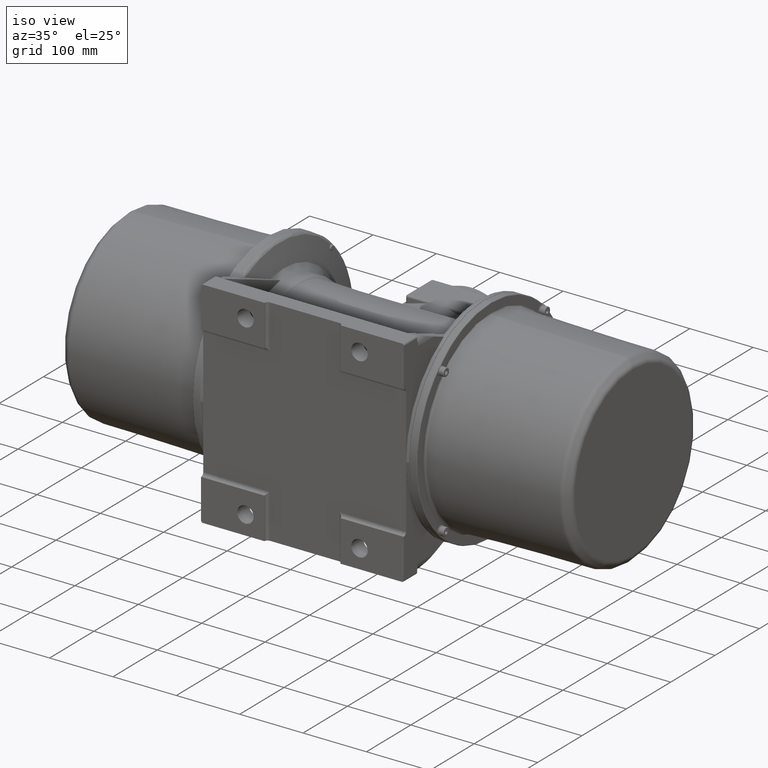
[diagram: clean part render]
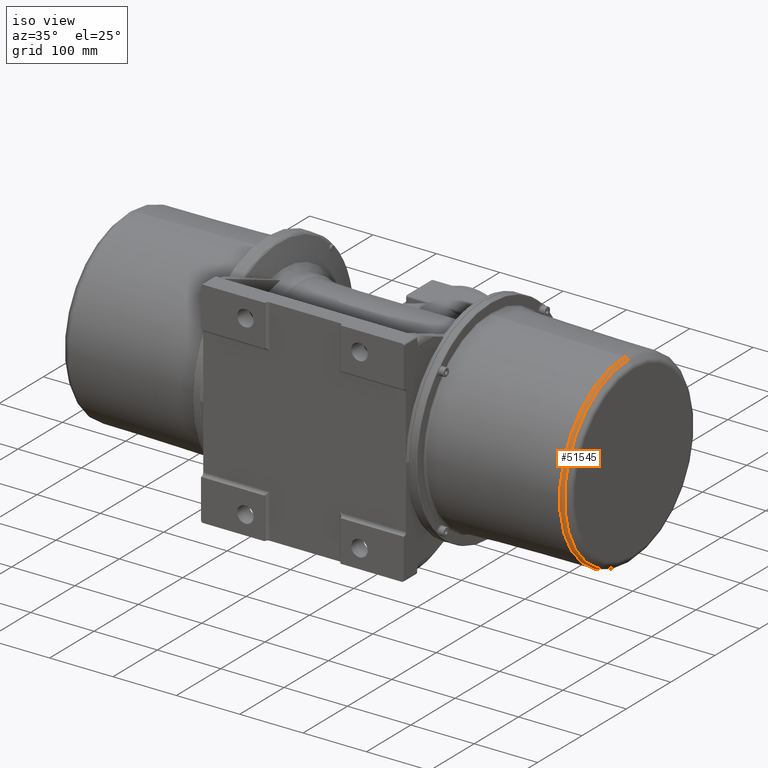
[diagram: same view with one face highlighted and labeled with its STEP entity id]
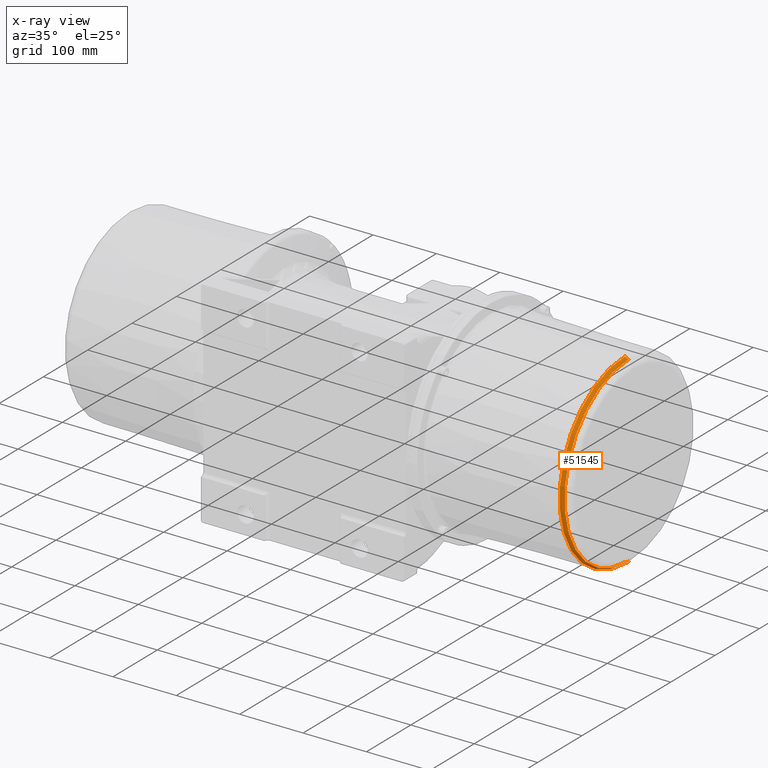
[diagram: x-ray of the same camera — body ghosted, the highlighted face saturated]
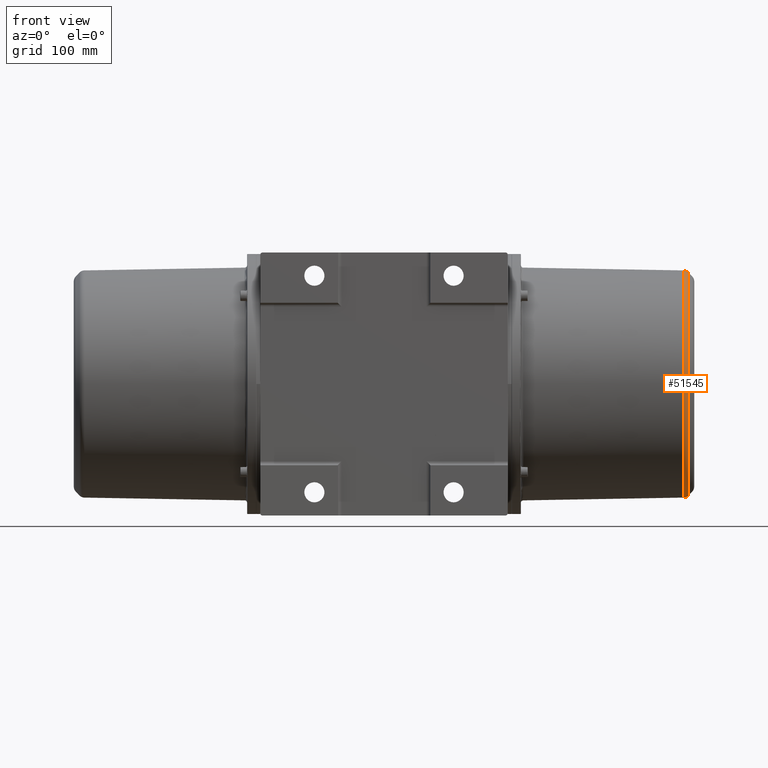
[diagram: same view with one face highlighted and labeled with its STEP entity id]
A machine part, iso view. The second image highlights one B-rep face of the part: STEP entity #51545.
The next image is the same camera in x-ray: the body ghosted, the highlighted face saturated — about 0% of this face is hidden behind the body in this view.
A second angle (front view) of the same face is appended — the face is thin or edge-on in the first view.
In plain terms, the highlighted toroidal blend (fillet) surface has major radius 138.327 mm and minor (blend) radius 8.5 mm.
Its self-contained STEP definition (entity closure, byte-faithful):
#7172 = CARTESIAN_POINT ( 'NONE',  ( 387.4794526992955100, 4.322844657877733000E-014, -146.8260628046224100 ) ) ;
#8132 = CARTESIAN_POINT ( 'NONE',  ( 393.4454955474579900, 4.268894653052243200E-014, -144.2319535446945100 ) ) ;
#8199 = CARTESIAN_POINT ( 'NONE',  ( 387.4794526992955100, 2.502562650619444800E-014, 146.8260628046224100 ) ) ;
#8214 = CARTESIAN_POINT ( 'NONE',  ( 393.4454955474579900, 2.502562650619444800E-014, 144.2319535446945100 ) ) ;
#15046 = AXIS2_PLACEMENT_3D ( 'NONE', #20312, #20310, #20321 ) ;
#15397 = AXIS2_PLACEMENT_3D ( 'NONE', #26560, #26566, #26567 ) ;
#15452 = AXIS2_PLACEMENT_3D ( 'NONE', #27320, #27321, #27322 ) ;
#15453 = AXIS2_PLACEMENT_3D ( 'NONE', #27291, #27293, #27294 ) ;
#15572 = AXIS2_PLACEMENT_3D ( 'NONE', #30682, #30685, #30686 ) ;
#18877 = VERTEX_POINT ( 'NONE', #7172 ) ;
#20310 = DIRECTION ( 'NONE',  ( 1.000000000000000000, 0.0000000000000000000, 0.0000000000000000000 ) ) ;
#20312 = CARTESIAN_POINT ( 'NONE',  ( 387.3311072445795300, 2.502562650619444800E-014, 0.0000000000000000000 ) ) ;
#20321 = DIRECTION ( 'NONE',  ( 0.0000000000000000000, 0.0000000000000000000, -1.000000000000000000 ) ) ;
#20841 = FACE_OUTER_BOUND ( 'NONE', #43407, .T. ) ;
#20863 = TOROIDAL_SURFACE ( 'NONE', #15046, 138.3273573957930300, 8.500000000000000000 ) ;
#24061 = VERTEX_POINT ( 'NONE', #8132 ) ;
#24134 = VERTEX_POINT ( 'NONE', #8199 ) ;
#24151 = VERTEX_POINT ( 'NONE', #8214 ) ;
#25415 = CIRCLE ( 'NONE', #15397, 146.8260628046224100 ) ;
#25710 = CIRCLE ( 'NONE', #15453, 8.500000000000007100 ) ;
#25730 = CIRCLE ( 'NONE', #15452, 8.500000000000007100 ) ;
#26295 = CIRCLE ( 'NONE', #15572, 144.2319535446946200 ) ;
#26560 = CARTESIAN_POINT ( 'NONE',  ( 387.4794526992955100, 2.502562650619444800E-014, 0.0000000000000000000 ) ) ;
#26566 = DIRECTION ( 'NONE',  ( -1.000000000000000000, -0.0000000000000000000, -0.0000000000000000000 ) ) ;
#26567 = DIRECTION ( 'NONE',  ( 0.0000000000000000000, 0.0000000000000000000, -1.000000000000000000 ) ) ;
#27291 = CARTESIAN_POINT ( 'NONE',  ( 387.3311072445795300, 4.196584205312143300E-014, 138.3273573957930300 ) ) ;
#27293 = DIRECTION ( 'NONE',  ( 0.0000000000000000000, 1.000000000000000000, -1.224646799147353200E-016 ) ) ;
#27294 = DIRECTION ( 'NONE',  ( 0.0000000000000000000, 1.224646799147349500E-016, 1.000000000000000000 ) ) ;
#27320 = CARTESIAN_POINT ( 'NONE',  ( 387.3311072445795300, 2.502562650619444800E-014, -138.3273573957930300 ) ) ;
#27321 = DIRECTION ( 'NONE',  ( 0.0000000000000000000, -1.000000000000000000, 0.0000000000000000000 ) ) ;
#27322 = DIRECTION ( 'NONE',  ( 0.0000000000000000000, 0.0000000000000000000, -1.000000000000000000 ) ) ;
#30682 = CARTESIAN_POINT ( 'NONE',  ( 393.4454955474579900, 2.502562650619444800E-014, 0.0000000000000000000 ) ) ;
#30685 = DIRECTION ( 'NONE',  ( 1.000000000000000000, 0.0000000000000000000, 0.0000000000000000000 ) ) ;
#30686 = DIRECTION ( 'NONE',  ( 0.0000000000000000000, 0.0000000000000000000, -1.000000000000000000 ) ) ;
#43407 = EDGE_LOOP ( 'NONE', ( #67771, #67773, #67775, #67777 ) ) ;
#51545 = ADVANCED_FACE ( 'NONE', ( #20841 ), #20863, .T. ) ;
#53307 = EDGE_CURVE ( 'NONE', #18877, #24134, #25415, .T. ) ;
#53525 = EDGE_CURVE ( 'NONE', #24134, #24151, #25710, .T. ) ;
#53536 = EDGE_CURVE ( 'NONE', #18877, #24061, #25730, .T. ) ;
#53977 = EDGE_CURVE ( 'NONE', #24151, #24061, #26295, .T. ) ;
#67771 = ORIENTED_EDGE ( 'NONE', *, *, #53525, .F. ) ;
#67773 = ORIENTED_EDGE ( 'NONE', *, *, #53307, .F. ) ;
#67775 = ORIENTED_EDGE ( 'NONE', *, *, #53536, .T. ) ;
#67777 = ORIENTED_EDGE ( 'NONE', *, *, #53977, .F. ) ;